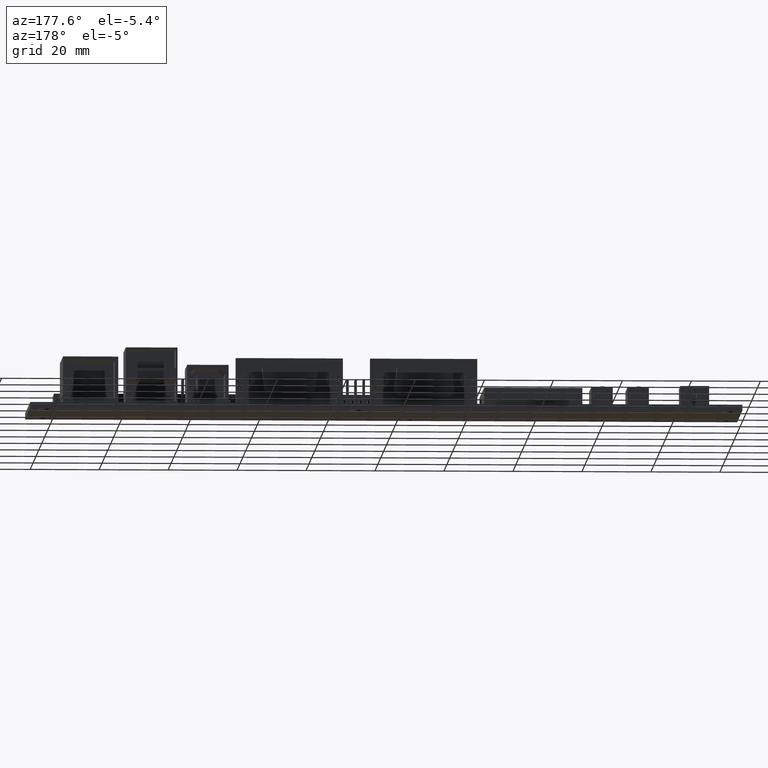
[diagram: clean part render]
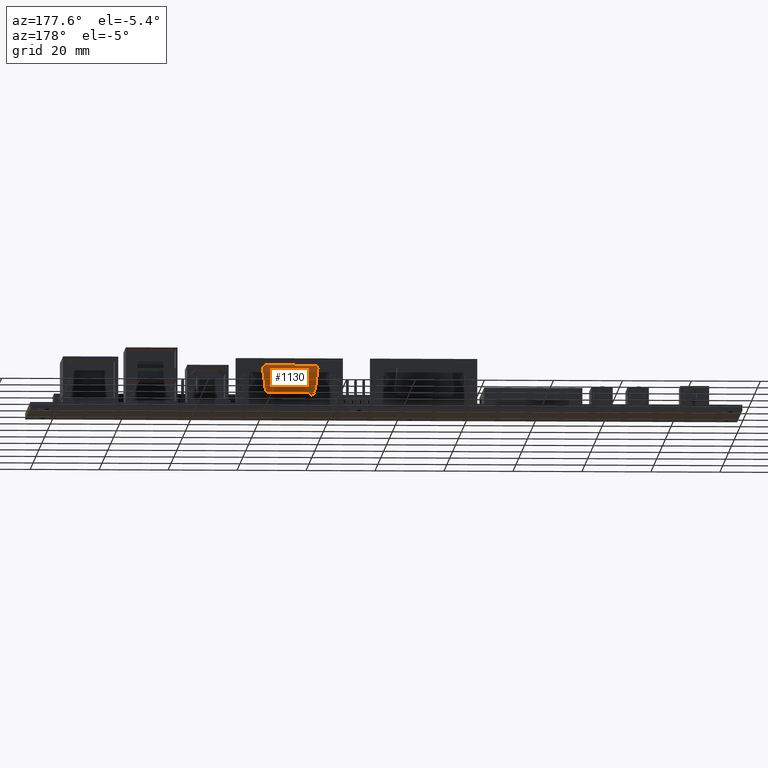
[diagram: same view with one face highlighted and labeled with its STEP entity id]
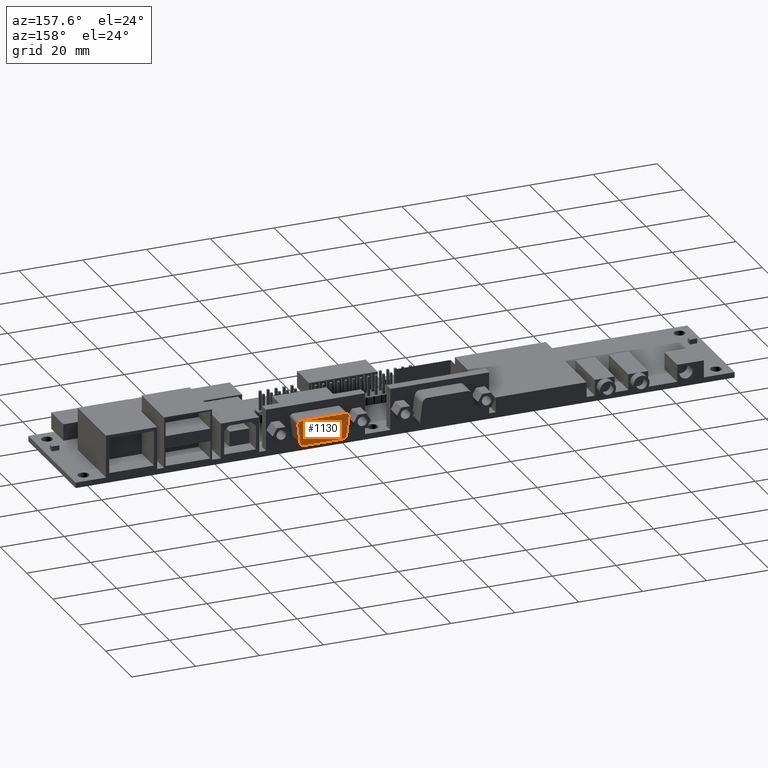
[diagram: same view with one face highlighted and labeled with its STEP entity id]
A machine part, auxiliary view. The second image highlights one B-rep face of the part: STEP entity #1130.
A second angle (auxiliary view) of the same face is appended — the face is thin or edge-on in the first view.
In plain terms, the highlighted face is a freeform B-spline surface patch.
Its self-contained STEP definition (entity closure, byte-faithful):
#134=B_SPLINE_SURFACE_WITH_KNOTS($,1,1,((#21100,#21101),(#21102,#21103)),
.UNSPECIFIED.,.F.,.F.,.F.,(2,2),(2,2),(-0.0163000672017257,16.31630006798),
(-0.00790013367917551,7.9),.UNSPECIFIED.);
#1130=ADVANCED_FACE($,(#2010),#134,.T.);
#2010=FACE_OUTER_BOUND($,#2905,.T.);
#2905=EDGE_LOOP($,(#6292,#6293,#6294,#6295,#6296,#6297,#6298,#6299));
#6292=ORIENTED_EDGE($,*,*,#8546,.F.);
#6293=ORIENTED_EDGE($,*,*,#8537,.F.);
#6294=ORIENTED_EDGE($,*,*,#8545,.F.);
#6295=ORIENTED_EDGE($,*,*,#8536,.F.);
#6296=ORIENTED_EDGE($,*,*,#8544,.F.);
#6297=ORIENTED_EDGE($,*,*,#8535,.F.);
#6298=ORIENTED_EDGE($,*,*,#8543,.F.);
#6299=ORIENTED_EDGE($,*,*,#8538,.F.);
#8535=EDGE_CURVE($,#9933,#9932,#12543,.T.);
#8536=EDGE_CURVE($,#9935,#9934,#12544,.T.);
#8537=EDGE_CURVE($,#9937,#9936,#12545,.T.);
#8538=EDGE_CURVE($,#9939,#9938,#12546,.T.);
#8543=EDGE_CURVE($,#9938,#9933,#12551,.T.);
#8544=EDGE_CURVE($,#9932,#9935,#12552,.T.);
#8545=EDGE_CURVE($,#9934,#9937,#12553,.T.);
#8546=EDGE_CURVE($,#9936,#9939,#12554,.T.);
#9932=VERTEX_POINT($,#21164);
#9933=VERTEX_POINT($,#21165);
#9934=VERTEX_POINT($,#21166);
#9935=VERTEX_POINT($,#21167);
#9936=VERTEX_POINT($,#21168);
#9937=VERTEX_POINT($,#21169);
#9938=VERTEX_POINT($,#21170);
#9939=VERTEX_POINT($,#21171);
#12543=B_SPLINE_CURVE_WITH_KNOTS($,1,(#20960,#20961),.UNSPECIFIED.,.F.,.F.,
(2,2),(0.87441981358386,6.77441981358386),.UNSPECIFIED.);
#12544=B_SPLINE_CURVE_WITH_KNOTS($,1,(#20962,#20963),.UNSPECIFIED.,.F.,.F.,
(2,2),(1.13456197729714,15.1654380227029),.UNSPECIFIED.);
#12545=B_SPLINE_CURVE_WITH_KNOTS($,1,(#20964,#20965),.UNSPECIFIED.,.F.,.F.,
(2,2),(-6.77441981358386,-0.87441981358386),.UNSPECIFIED.);
#12546=B_SPLINE_CURVE_WITH_KNOTS($,1,(#20966,#20967),.UNSPECIFIED.,.F.,.F.,
(2,2),(-15.2953302131845,-1.00466978681555),.UNSPECIFIED.);
#12551=B_SPLINE_CURVE_WITH_KNOTS($,3,(#21016,#21017,#21018,#21019,#21020,
#21021,#21022,#21023,#21024,#21025,#21026,#21027),.UNSPECIFIED.,.F.,.F.,
(4,1,1,1,1,1,1,1,1,4),(0.,0.150702655454029,0.308366337437294,0.471407969595796,
0.637855528669257,0.805470128089654,0.971917687163116,1.13495931926343,1.29262300104619,
1.44332565643879),.UNSPECIFIED.);
#12552=B_SPLINE_CURVE_WITH_KNOTS($,3,(#21028,#21029,#21030,#21031,#21032,
#21033,#21034,#21035,#21036,#21037,#21038,#21039),.UNSPECIFIED.,.F.,.F.,
(4,1,1,1,1,1,1,1,1,4),(0.,0.172584274912627,0.356258341575659,0.54876396082233,
0.746986203524817,0.947189804917207,1.1454120476197,1.33791766751878,1.52159173325297,
1.69417600805795),.UNSPECIFIED.);
#12553=B_SPLINE_CURVE_WITH_KNOTS($,3,(#21040,#21041,#21042,#21043,#21044,
#21045,#21046,#21047,#21048,#21049,#21050,#21051),.UNSPECIFIED.,.F.,.F.,
(4,1,1,1,1,1,1,1,1,4),(-1.69417600805795,-1.52159173325297,-1.33791766751878,
-1.1454120476197,-0.947189804917206,-0.746986203524821,-0.548763960822331,
-0.356258341575658,-0.172584274912627,0.),.UNSPECIFIED.);
#12554=B_SPLINE_CURVE_WITH_KNOTS($,3,(#21052,#21053,#21054,#21055,#21056,
#21057,#21058,#21059,#21060,#21061,#21062,#21063),.UNSPECIFIED.,.F.,.F.,
(4,1,1,1,1,1,1,1,1,4),(-1.44332565643879,-1.29262300104619,-1.13495931926343,
-0.971917687163114,-0.805470128089653,-0.637855528669256,-0.471407969595795,
-0.308366337437293,-0.150702655454029,0.),.UNSPECIFIED.);
#20960=CARTESIAN_POINT($,(138.612543617786,42.,5.12441981358386));
#20961=CARTESIAN_POINT($,(139.359379060824,42.,11.0244198135839));
#20962=CARTESIAN_POINT($,(138.367295588136,42.,12.15));
#20963=CARTESIAN_POINT($,(124.336419542731,42.,12.15));
#20964=CARTESIAN_POINT($,(123.344336070043,42.,11.0244198135839));
#20965=CARTESIAN_POINT($,(124.091171513081,42.,5.12441981358386));
#20966=CARTESIAN_POINT($,(125.083254985769,42.,4.25));
#20967=CARTESIAN_POINT($,(137.620460145098,42.,4.25));
#21016=CARTESIAN_POINT($,(137.620460145098,42.,4.25));
#21017=CARTESIAN_POINT($,(137.670694363583,42.,4.25));
#21018=CARTESIAN_POINT($,(137.773647646233,42.,4.2577736643805));
#21019=CARTESIAN_POINT($,(137.927263676126,42.,4.2937075688463));
#21020=CARTESIAN_POINT($,(138.078114236852,42.,4.35576093136356));
#21021=CARTESIAN_POINT($,(138.219577091656,42.,4.44351137061867));
#21022=CARTESIAN_POINT($,(138.345326967163,42.,4.55434698685582));
#21023=CARTESIAN_POINT($,(138.450147660296,42.,4.6836702300046));
#21024=CARTESIAN_POINT($,(138.530653613785,42.,4.82553390704397));
#21025=CARTESIAN_POINT($,(138.585594179286,42.,4.97342124359026));
#21026=CARTESIAN_POINT($,(138.606235195267,42.,5.07458327568215));
#21027=CARTESIAN_POINT($,(138.612543617786,42.,5.12441981358386));
#21028=CARTESIAN_POINT($,(139.359379060824,42.,11.0244198135839));
#21029=CARTESIAN_POINT($,(139.366603449296,42.,11.0814924825127));
#21030=CARTESIAN_POINT($,(139.37133291094,42.,11.2008432144699));
#21031=CARTESIAN_POINT($,(139.345871208866,42.,11.3829880630363));
#21032=CARTESIAN_POINT($,(139.283952960477,42.,11.5654375356941));
#21033=CARTESIAN_POINT($,(139.184936160704,42.,11.737218194918));
#21034=CARTESIAN_POINT($,(139.052544509542,42.,11.8874247280208));
#21035=CARTESIAN_POINT($,(138.894558305128,42.,12.0072299069754));
#21036=CARTESIAN_POINT($,(138.721328902293,42.,12.0915700129192));
#21037=CARTESIAN_POINT($,(138.5438234949,42.,12.1397039340252));
#21038=CARTESIAN_POINT($,(138.424823679738,42.,12.15));
#21039=CARTESIAN_POINT($,(138.367295588136,42.,12.15));
#21040=CARTESIAN_POINT($,(124.336419542731,42.,12.15));
#21041=CARTESIAN_POINT($,(124.278891451129,42.,12.15));
#21042=CARTESIAN_POINT($,(124.159891635967,42.,12.1397039340252));
#21043=CARTESIAN_POINT($,(123.982386228574,42.,12.0915700129192));
#21044=CARTESIAN_POINT($,(123.809156825739,42.,12.0072299069754));
#21045=CARTESIAN_POINT($,(123.651170621326,42.,11.8874247280208));
#21046=CARTESIAN_POINT($,(123.518778970163,42.,11.737218194918));
#21047=CARTESIAN_POINT($,(123.41976217039,42.,11.5654375356941));
#21048=CARTESIAN_POINT($,(123.357843922001,42.,11.3829880630363));
#21049=CARTESIAN_POINT($,(123.332382219927,42.,11.2008432144699));
#21050=CARTESIAN_POINT($,(123.337111681571,42.,11.0814924825127));
#21051=CARTESIAN_POINT($,(123.344336070043,42.,11.0244198135839));
#21052=CARTESIAN_POINT($,(124.091171513081,42.,5.12441981358386));
#21053=CARTESIAN_POINT($,(124.0974799356,42.,5.07458327568215));
#21054=CARTESIAN_POINT($,(124.118120951581,42.,4.97342124359026));
#21055=CARTESIAN_POINT($,(124.173061517082,42.,4.82553390704397));
#21056=CARTESIAN_POINT($,(124.253567470571,42.,4.6836702300046));
#21057=CARTESIAN_POINT($,(124.358388163705,42.,4.55434698685582));
#21058=CARTESIAN_POINT($,(124.484138039211,42.,4.44351137061867));
#21059=CARTESIAN_POINT($,(124.625600894016,42.,4.35576093136356));
#21060=CARTESIAN_POINT($,(124.776451454741,42.,4.2937075688463));
#21061=CARTESIAN_POINT($,(124.930067484634,42.,4.2577736643805));
#21062=CARTESIAN_POINT($,(125.033020767284,42.,4.25));
#21063=CARTESIAN_POINT($,(125.083254985769,42.,4.25));
#21100=CARTESIAN_POINT($,(138.515155607426,42.,4.24209986632082));
#21101=CARTESIAN_POINT($,(139.518157632635,42.,12.15));
#21102=CARTESIAN_POINT($,(124.188559522758,42.,4.24209986632082));
#21103=CARTESIAN_POINT($,(123.185557497454,42.,12.15));
#21164=CARTESIAN_POINT($,(139.359379060824,42.,11.0244198135839));
#21165=CARTESIAN_POINT($,(138.612543617786,42.,5.12441981358386));
#21166=CARTESIAN_POINT($,(124.336419542731,42.,12.15));
#21167=CARTESIAN_POINT($,(138.367295588136,42.,12.15));
#21168=CARTESIAN_POINT($,(124.091171513081,42.,5.12441981358386));
#21169=CARTESIAN_POINT($,(123.344336070043,42.,11.0244198135839));
#21170=CARTESIAN_POINT($,(137.620460145098,42.,4.25));
#21171=CARTESIAN_POINT($,(125.083254985769,42.,4.25));